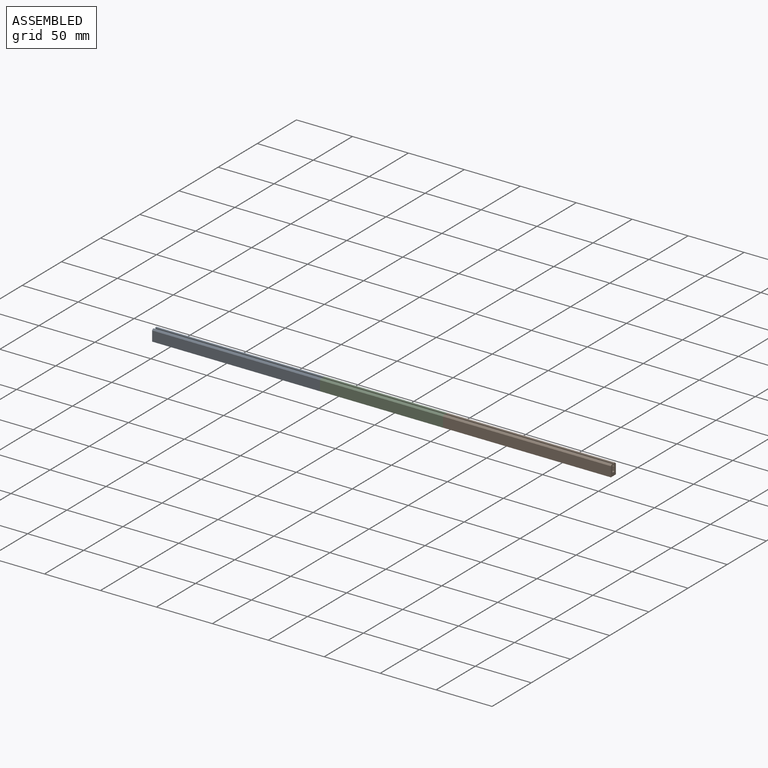
[diagram: assembled view]
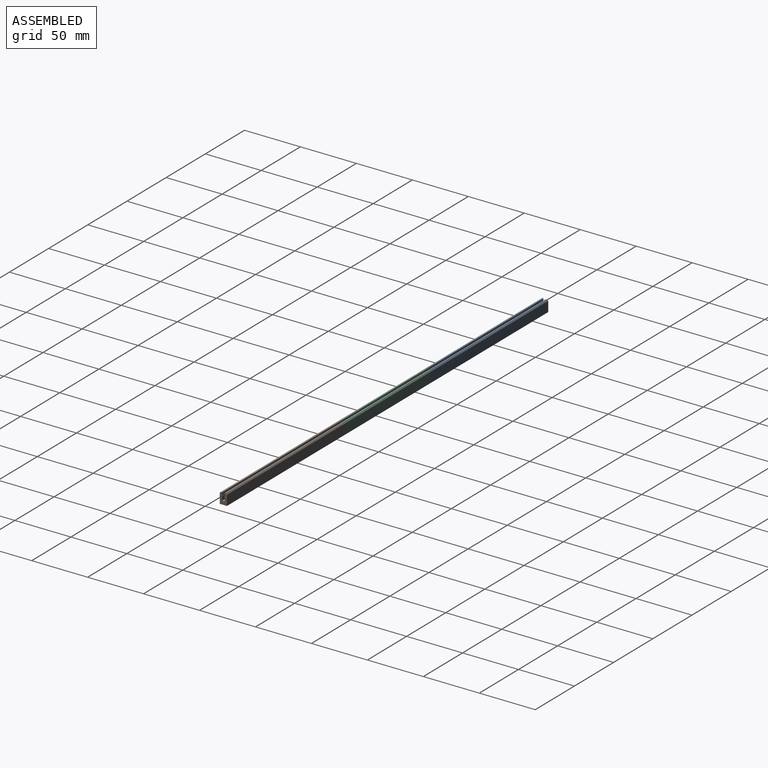
[diagram: assembled view, second angle]
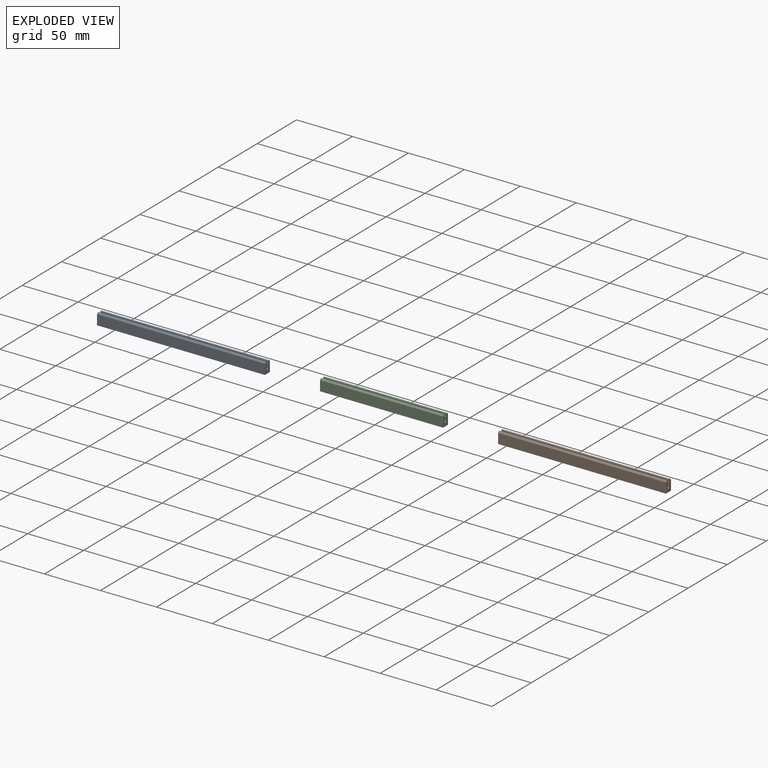
[diagram: exploded view]
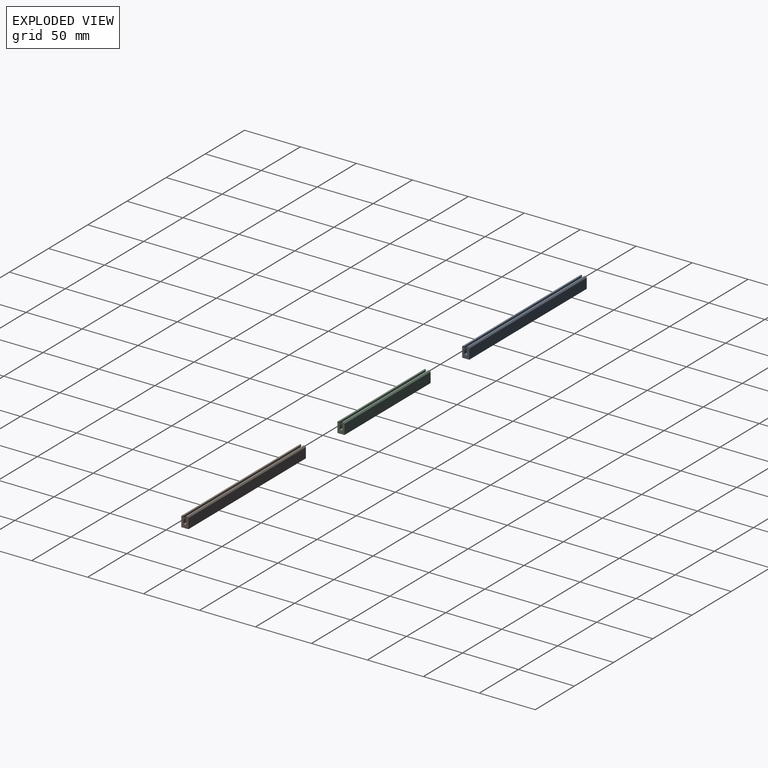
[diagram: exploded view, second angle]
ASSEMBLY  parts=3 mates=6
PART A: 20 faces, bbox 6.4x150x10 mm
  f0: plane 150x1mm, normal (0,0,1), area 150mm2, adj f15,f16,f17,f18
  f1: plane 150x9mm, normal (-1,0,0), area 1350mm2, adj f2,f16,f17,f18
  f2: plane 150x6.4mm, normal (0,0,-1), area 960mm2, adj f1,f3,f16,f17
  f3: plane 150x9mm, normal (1,0,0), area 1350mm2, adj f2,f16,f17,f19
  f4: plane 150x1mm, normal (0,0,1), area 150mm2, adj f5,f16,f17,f19
  f5: cylinder r=0.5mm len=150mm, axis (0,1,0), area 173.9mm2, adj f4,f6,f16,f17
  f6: plane 150x1.63mm, normal (-1,0,0), area 243.8mm2, adj f5,f7,f16,f17
  f7: cylinder r=0.5mm len=150mm, axis (0,1,0), area 173.9mm2, adj f6,f8,f16,f17
  f8: plane 150x3.04mm, normal (-1,0,0), area 456.3mm2, adj f7,f9,f16,f17
  f9: cylinder r=0.5mm len=150mm, axis (0,1,0), area 117.8mm2, adj f8,f10,f16,f17
  f10: plane 150x1.4mm, normal (0,0,1), area 210mm2, adj f9,f11,f16,f17
  f11: cylinder r=0.5mm len=150mm, axis (0,1,0), area 117.8mm2, adj f10,f12,f16,f17
  f12: plane 150x3.04mm, normal (1,0,0), area 456.3mm2, adj f11,f13,f16,f17
  f13: cylinder r=0.5mm len=150mm, axis (0,1,0), area 173.9mm2, adj f12,f14,f16,f17
  f14: plane 150x1.63mm, normal (1,0,0), area 243.8mm2, adj f13,f15,f16,f17
  f15: cylinder r=0.5mm len=150mm, axis (0,1,0), area 173.9mm2, adj f0,f14,f16,f17
  f16: plane 10x6.4mm, normal (0,-1,0), area 47.1mm2, adj f0,f1,f2,f3,f4,f5,f6,f7
  f17: plane 10x6.4mm, normal (0,1,0), area 47.1mm2, adj f0,f1,f2,f3,f4,f5,f6,f7
  f18: plane 150x1mm, normal (-0.71,0,0.71), area 212.1mm2, adj f0,f1,f16,f17
  f19: plane 150x1mm, normal (0.71,0,0.71), area 212.1mm2, adj f3,f4,f16,f17
PART B: same geometry as A
PART C: 20 faces, bbox 6.4x110x10 mm
  f0: plane 110x1mm, normal (0,0,1), area 110mm2, adj f15,f16,f17,f18
  f1: plane 110x9mm, normal (-1,0,0), area 990mm2, adj f2,f16,f17,f18
  f2: plane 110x6.4mm, normal (0,0,-1), area 704mm2, adj f1,f3,f16,f17
  f3: plane 110x9mm, normal (1,0,0), area 990mm2, adj f2,f16,f17,f19
  f4: plane 110x1mm, normal (0,0,1), area 110mm2, adj f5,f16,f17,f19
  f5: cylinder r=0.5mm len=110mm, axis (0,1,0), area 127.5mm2, adj f4,f6,f16,f17
  f6: plane 110x1.63mm, normal (-1,0,0), area 178.8mm2, adj f5,f7,f16,f17
  f7: cylinder r=0.5mm len=110mm, axis (0,1,0), area 127.5mm2, adj f6,f8,f16,f17
  f8: plane 110x3.04mm, normal (-1,0,0), area 334.6mm2, adj f7,f9,f16,f17
  f9: cylinder r=0.5mm len=110mm, axis (0,1,0), area 86.4mm2, adj f8,f10,f16,f17
  f10: plane 110x1.4mm, normal (0,0,1), area 154mm2, adj f9,f11,f16,f17
  f11: cylinder r=0.5mm len=110mm, axis (0,1,0), area 86.4mm2, adj f10,f12,f16,f17
  f12: plane 110x3.04mm, normal (1,0,0), area 334.6mm2, adj f11,f13,f16,f17
  f13: cylinder r=0.5mm len=110mm, axis (0,1,0), area 127.5mm2, adj f12,f14,f16,f17
  f14: plane 110x1.63mm, normal (1,0,0), area 178.8mm2, adj f13,f15,f16,f17
  f15: cylinder r=0.5mm len=110mm, axis (0,1,0), area 127.5mm2, adj f0,f14,f16,f17
  f16: plane 10x6.4mm, normal (0,-1,0), area 47.1mm2, adj f0,f1,f2,f3,f4,f5,f6,f7
  f17: plane 10x6.4mm, normal (0,1,0), area 47.1mm2, adj f0,f1,f2,f3,f4,f5,f6,f7
  f18: plane 110x1mm, normal (-0.71,0,0.71), area 155.6mm2, adj f0,f1,f16,f17
  f19: plane 110x1mm, normal (0.71,0,0.71), area 155.6mm2, adj f3,f4,f16,f17
PLACE A rot(axis=(0,0,1),90deg) t=(-133.7,267.2,0)mm
PLACE B rot(axis=(0,0,1),90deg) t=(126.3,267.2,0)mm
PLACE C rot(axis=(0,0,1),90deg) t=(-3.7,267.2,0)mm
MATE planar C.f17 <-> A.f16  axis (-1,0,0) through (-58.7,267.2,0)mm
MATE planar C.f1 <-> A.f1  axis (0,-1,0) through (-3.7,264,4.5)mm
MATE planar C.f2 <-> B.f2  axis (0,0,-1) through (51.3,264,0)mm
MATE planar A.f2 <-> C.f2  axis (0,0,-1) through (-58.7,267.2,0)mm
MATE planar B.f3 <-> C.f3  axis (0,1,0) through (126.3,270.4,4.5)mm
MATE planar C.f16 <-> B.f17  axis (1,0,0) through (51.3,267.2,0)mm
